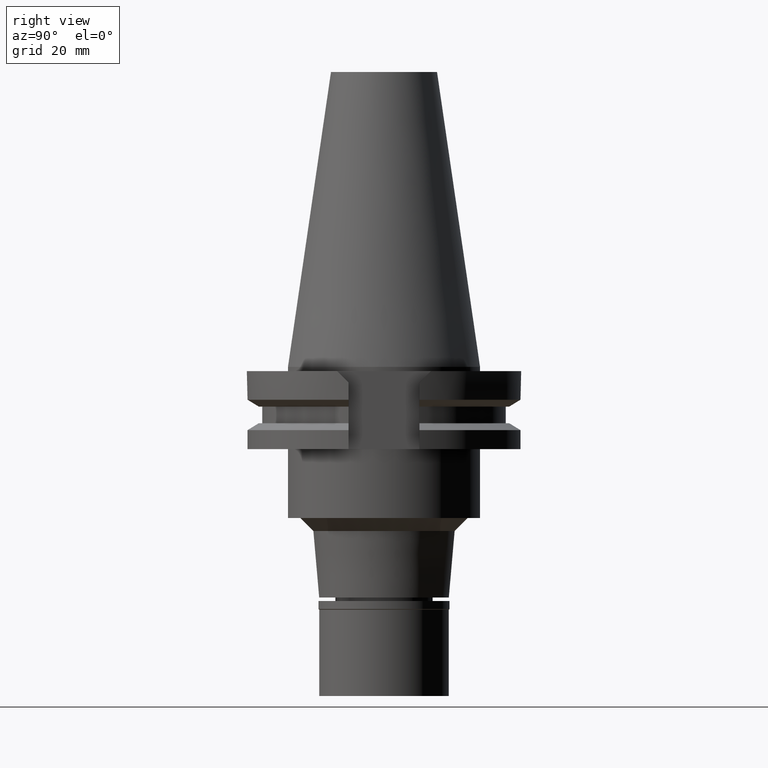
[diagram: clean part render]
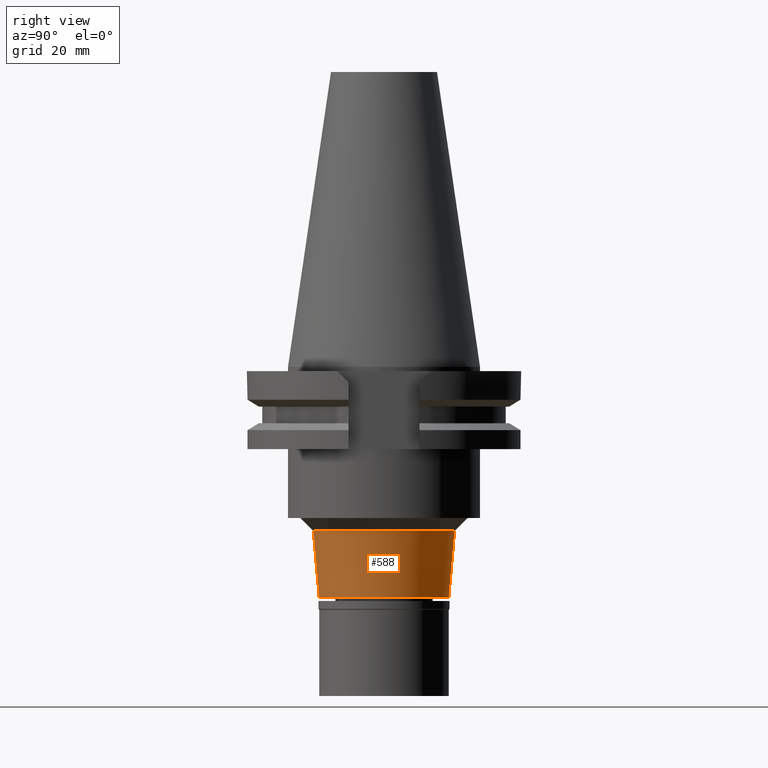
[diagram: same view with one face highlighted and labeled with its STEP entity id]
A machine part, right view. The second image highlights one B-rep face of the part: STEP entity #588.
In plain terms, the highlighted conical surface has half-angle 5 deg.
Its self-contained STEP definition (entity closure, byte-faithful):
#131 = VECTOR ( 'NONE', #2148, 1000.000000000000227 ) ;
#166 = CARTESIAN_POINT ( 'NONE',  ( 0.0000000000000000000, 0.0000000000000000000, -45.69999999999999574 ) ) ;
#189 = CARTESIAN_POINT ( 'NONE',  ( 0.0000000000000000000, 16.34732541829999874, -38.00000000000000000 ) ) ;
#293 = VECTOR ( 'NONE', #726, 1000.000000000000227 ) ;
#344 = VERTEX_POINT ( 'NONE', #2967 ) ;
#349 = CARTESIAN_POINT ( 'NONE',  ( 0.0000000000000000000, 0.0000000000000000000, -38.00000000000000000 ) ) ;
#435 = AXIS2_PLACEMENT_3D ( 'NONE', #349, #3171, #1395 ) ;
#437 = AXIS2_PLACEMENT_3D ( 'NONE', #2380, #2459, #1083 ) ;
#438 = CARTESIAN_POINT ( 'NONE',  ( 0.0000000000000000000, -16.34732541829999874, -38.00000000000000000 ) ) ;
#588 = ADVANCED_FACE ( 'NONE', ( #1429 ), #2011, .T. ) ;
#726 = DIRECTION ( 'NONE',  ( 0.0000000000000000000, 0.08715574274768382590, -0.9961946980917432137 ) ) ;
#731 = CARTESIAN_POINT ( 'NONE',  ( 0.0000000000000000000, 15.00000000000000000, -53.40000000000000568 ) ) ;
#830 = ORIENTED_EDGE ( 'NONE', *, *, #2801, .F. ) ;
#895 = DIRECTION ( 'NONE',  ( 0.0000000000000000000, 1.000000000000000000, 0.0000000000000000000 ) ) ;
#984 = CIRCLE ( 'NONE', #435, 16.34732541829999874 ) ;
#1083 = DIRECTION ( 'NONE',  ( 0.0000000000000000000, -1.000000000000000000, 0.0000000000000000000 ) ) ;
#1195 = AXIS2_PLACEMENT_3D ( 'NONE', #166, #2232, #895 ) ;
#1334 = VERTEX_POINT ( 'NONE', #189 ) ;
#1395 = DIRECTION ( 'NONE',  ( 0.0000000000000000000, -1.000000000000000000, 0.0000000000000000000 ) ) ;
#1424 = VERTEX_POINT ( 'NONE', #438 ) ;
#1429 = FACE_OUTER_BOUND ( 'NONE', #3041, .T. ) ;
#1478 = CARTESIAN_POINT ( 'NONE',  ( 0.0000000000000000000, -16.34732541829999874, -38.00000000000000000 ) ) ;
#1490 = LINE ( 'NONE', #1478, #293 ) ;
#1714 = EDGE_CURVE ( 'NONE', #1424, #1334, #984, .T. ) ;
#1797 = ORIENTED_EDGE ( 'NONE', *, *, #2224, .T. ) ;
#2011 = CONICAL_SURFACE ( 'NONE', #1195, 15.67366270915000115, 0.08726646259969973729 ) ;
#2148 = DIRECTION ( 'NONE',  ( 0.0000000000000000000, -0.08715574274768382590, -0.9961946980917432137 ) ) ;
#2224 = EDGE_CURVE ( 'NONE', #344, #2739, #2685, .T. ) ;
#2232 = DIRECTION ( 'NONE',  ( 0.0000000000000000000, 0.0000000000000000000, 1.000000000000000000 ) ) ;
#2380 = CARTESIAN_POINT ( 'NONE',  ( 0.0000000000000000000, 0.0000000000000000000, -53.40000000000000568 ) ) ;
#2435 = LINE ( 'NONE', #2454, #131 ) ;
#2454 = CARTESIAN_POINT ( 'NONE',  ( 0.0000000000000000000, 16.34732541829999874, -38.00000000000000000 ) ) ;
#2459 = DIRECTION ( 'NONE',  ( 0.0000000000000000000, 0.0000000000000000000, 1.000000000000000000 ) ) ;
#2620 = ORIENTED_EDGE ( 'NONE', *, *, #1714, .F. ) ;
#2685 = CIRCLE ( 'NONE', #437, 15.00000000000000000 ) ;
#2739 = VERTEX_POINT ( 'NONE', #731 ) ;
#2801 = EDGE_CURVE ( 'NONE', #1334, #2739, #2435, .T. ) ;
#2967 = CARTESIAN_POINT ( 'NONE',  ( 0.0000000000000000000, -15.00000000000000000, -53.40000000000000568 ) ) ;
#3041 = EDGE_LOOP ( 'NONE', ( #2620, #3146, #1797, #830 ) ) ;
#3072 = EDGE_CURVE ( 'NONE', #1424, #344, #1490, .T. ) ;
#3146 = ORIENTED_EDGE ( 'NONE', *, *, #3072, .T. ) ;
#3171 = DIRECTION ( 'NONE',  ( 0.0000000000000000000, 0.0000000000000000000, 1.000000000000000000 ) ) ;